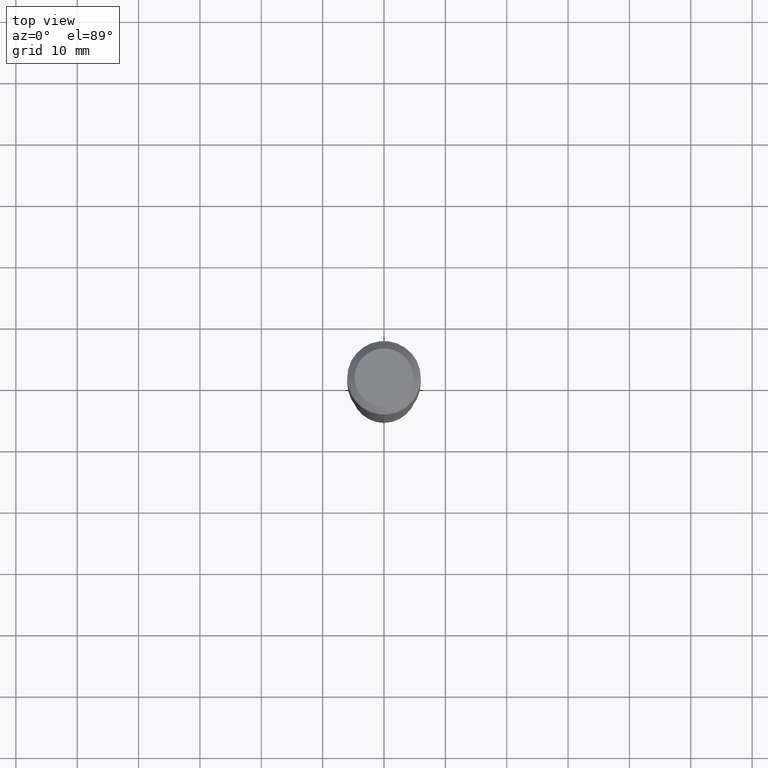
[diagram: clean part render]
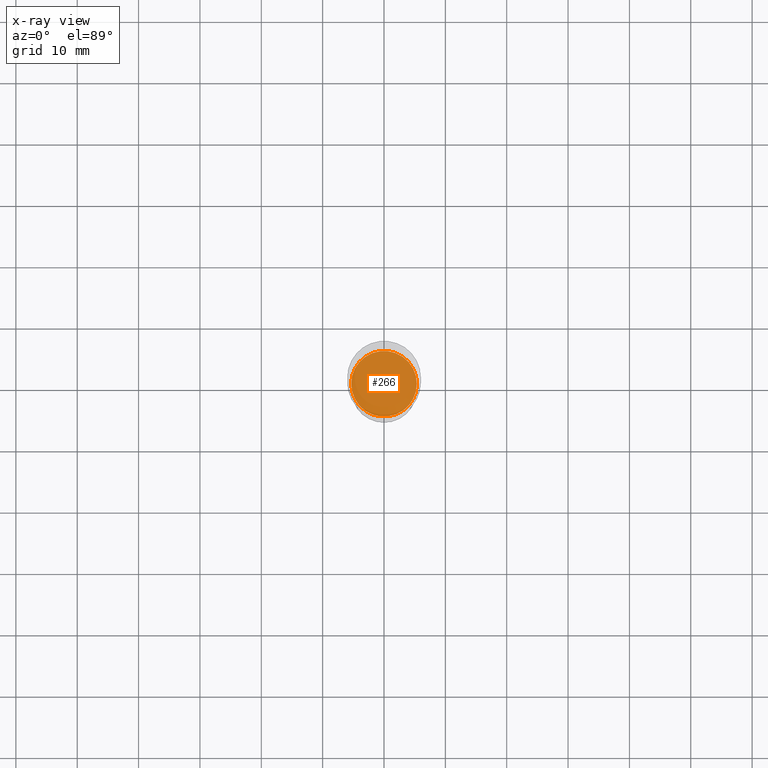
[diagram: x-ray — body ghosted, one internal face saturated and labeled with its STEP entity id]
A machine part, top view, then the same camera in x-ray: the body is ghosted and one INTERNAL B-rep face — a face not visible from any outside direction — is saturated and labeled: STEP entity #266.
In plain terms, the highlighted planar face has unit normal (-0, 0, 1).
Its self-contained STEP definition (entity closure, byte-faithful):
#11 = AXIS2_PLACEMENT_3D ( 'NONE', #361, #318, #178 ) ;
#23 = CIRCLE ( 'NONE', #339, 0.2104499999999999982 ) ;
#28 = DIRECTION ( 'NONE',  ( -2.438088387897960049E-29, 3.491481338843145188E-15, 1.000000000000000000 ) ) ;
#72 = EDGE_CURVE ( 'NONE', #367, #335, #229, .T. ) ;
#132 = ORIENTED_EDGE ( 'NONE', *, *, #251, .F. ) ;
#145 = FACE_OUTER_BOUND ( 'NONE', #200, .T. ) ;
#178 = DIRECTION ( 'NONE',  ( 1.000000000000000000, -6.982962677686264344E-15, 0.000000000000000000 ) ) ;
#200 = EDGE_LOOP ( 'NONE', ( #328, #132 ) ) ;
#229 = CIRCLE ( 'NONE', #11, 0.2104499999999999982 ) ;
#244 = CARTESIAN_POINT ( 'NONE',  ( -0.2104499999999999982, -6.437801520475345030E-15, -2.272900000000000365 ) ) ;
#251 = EDGE_CURVE ( 'NONE', #335, #367, #23, .T. ) ;
#254 = DIRECTION ( 'NONE',  ( 1.000000000000000000, -6.982962677686265922E-15, 4.876176775795935793E-29 ) ) ;
#266 = ADVANCED_FACE ( 'NONE', ( #145 ), #292, .F. ) ;
#269 = CARTESIAN_POINT ( 'NONE',  ( 5.558306049578198458E-29, -7.935787935056587256E-15, -2.272900000000000365 ) ) ;
#292 = PLANE ( 'NONE',  #427 ) ;
#318 = DIRECTION ( 'NONE',  ( -2.445468806185136597E-29, 3.491481338843145583E-15, 1.000000000000000000 ) ) ;
#328 = ORIENTED_EDGE ( 'NONE', *, *, #72, .F. ) ;
#335 = VERTEX_POINT ( 'NONE', #244 ) ;
#339 = AXIS2_PLACEMENT_3D ( 'NONE', #269, #431, #424 ) ;
#361 = CARTESIAN_POINT ( 'NONE',  ( 5.558306049578198458E-29, -7.935787935056587256E-15, -2.272900000000000365 ) ) ;
#367 = VERTEX_POINT ( 'NONE', #469 ) ;
#424 = DIRECTION ( 'NONE',  ( 1.000000000000000000, -6.982962677686264344E-15, 0.000000000000000000 ) ) ;
#427 = AXIS2_PLACEMENT_3D ( 'NONE', #452, #28, #254 ) ;
#431 = DIRECTION ( 'NONE',  ( -2.445468806185136597E-29, 3.491481338843145583E-15, 1.000000000000000000 ) ) ;
#452 = CARTESIAN_POINT ( 'NONE',  ( 3.498019392554741119E-29, -1.088623569214829618E-14, -2.272900000000000365 ) ) ;
#469 = CARTESIAN_POINT ( 'NONE',  ( 0.2104499999999999982, -9.405352430575661814E-15, -2.272900000000000365 ) ) ;